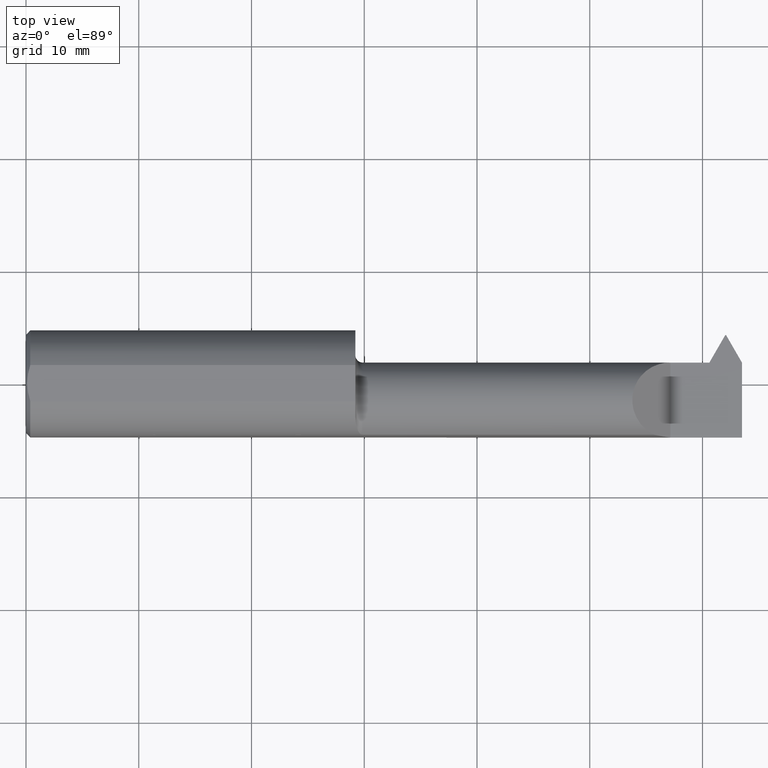
[diagram: clean part render]
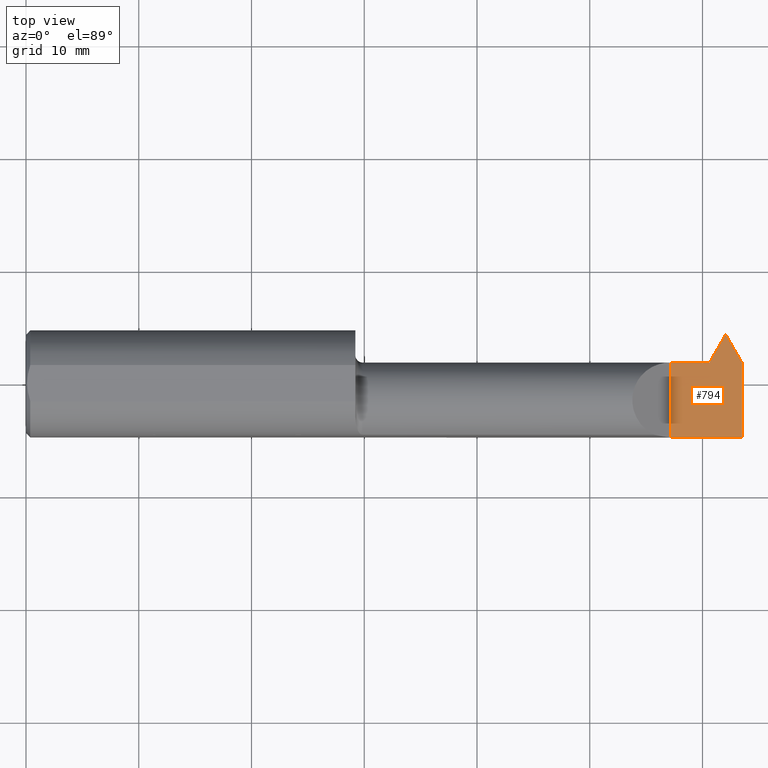
[diagram: same view with one face highlighted and labeled with its STEP entity id]
A machine part, top view. The second image highlights one B-rep face of the part: STEP entity #794.
In plain terms, the highlighted planar face has unit normal (-0, 0, -1).
Its self-contained STEP definition (entity closure, byte-faithful):
#2 = VERTEX_POINT ( 'NONE', #451 ) ;
#21 = CARTESIAN_POINT ( 'NONE',  ( 2.250000000000000000, 0.07464999999999979985, 4.959819536546775670E-16 ) ) ;
#30 = ORIENTED_EDGE ( 'NONE', *, *, #359, .F. ) ;
#42 = ORIENTED_EDGE ( 'NONE', *, *, #306, .F. ) ;
#69 = ORIENTED_EDGE ( 'NONE', *, *, #223, .F. ) ;
#75 = DIRECTION ( 'NONE',  ( 1.000000000000000000, -8.318523153256623909E-17, 0.000000000000000000 ) ) ;
#85 = PLANE ( 'NONE',  #305 ) ;
#106 = ORIENTED_EDGE ( 'NONE', *, *, #558, .F. ) ;
#115 = LINE ( 'NONE', #400, #801 ) ;
#119 = LINE ( 'NONE', #311, #704 ) ;
#121 = VERTEX_POINT ( 'NONE', #336 ) ;
#130 = VERTEX_POINT ( 'NONE', #519 ) ;
#140 = CARTESIAN_POINT ( 'NONE',  ( 2.500000000000000000, -0.1873499999999999888, 0.000000000000000000 ) ) ;
#158 = DIRECTION ( 'NONE',  ( -1.000000000000000000, -0.000000000000000000, -0.000000000000000000 ) ) ;
#173 = LINE ( 'NONE', #528, #257 ) ;
#204 = VECTOR ( 'NONE', #658, 39.37007874015748143 ) ;
#217 = ORIENTED_EDGE ( 'NONE', *, *, #789, .F. ) ;
#223 = EDGE_CURVE ( 'NONE', #240, #641, #572, .T. ) ;
#225 = LINE ( 'NONE', #542, #481 ) ;
#233 = DIRECTION ( 'NONE',  ( 1.000000000000000000, -1.519028875531158940E-14, -0.000000000000000000 ) ) ;
#235 = CARTESIAN_POINT ( 'NONE',  ( 2.500000000000000000, 0.000000000000000000, 0.000000000000000000 ) ) ;
#240 = VERTEX_POINT ( 'NONE', #683 ) ;
#257 = VECTOR ( 'NONE', #233, 39.37007874015748143 ) ;
#303 = DIRECTION ( 'NONE',  ( -0.000000000000000000, 1.000000000000000000, -0.000000000000000000 ) ) ;
#305 = AXIS2_PLACEMENT_3D ( 'NONE', #644, #709, #393 ) ;
#306 = EDGE_CURVE ( 'NONE', #641, #763, #225, .T. ) ;
#311 = CARTESIAN_POINT ( 'NONE',  ( 1.150000000000000133, 0.1706500000000000516, 4.959819536546775670E-16 ) ) ;
#324 = CARTESIAN_POINT ( 'NONE',  ( 1.150000000000000133, 0.07464999999999989699, 4.959819536546775670E-16 ) ) ;
#336 = CARTESIAN_POINT ( 'NONE',  ( 2.376520281605562168, 0.07464999999999995250, 0.000000000000000000 ) ) ;
#346 = EDGE_CURVE ( 'NONE', #680, #130, #119, .T. ) ;
#359 = EDGE_CURVE ( 'NONE', #763, #623, #115, .T. ) ;
#362 = VECTOR ( 'NONE', #769, 39.37007874015748854 ) ;
#390 = ORIENTED_EDGE ( 'NONE', *, *, #687, .F. ) ;
#393 = DIRECTION ( 'NONE',  ( -1.000000000000000000, 0.000000000000000000, 3.673940397442056910E-16 ) ) ;
#400 = CARTESIAN_POINT ( 'NONE',  ( 2.250000000000000000, -0.2500000000000000555, 9.184850993605143507E-17 ) ) ;
#412 = EDGE_CURVE ( 'NONE', #130, #240, #484, .T. ) ;
#448 = ORIENTED_EDGE ( 'NONE', *, *, #346, .F. ) ;
#451 = CARTESIAN_POINT ( 'NONE',  ( 2.386074374157796552, 0.07464999999999979985, 0.000000000000000000 ) ) ;
#454 = VECTOR ( 'NONE', #75, 39.37007874015748143 ) ;
#456 = FACE_OUTER_BOUND ( 'NONE', #722, .T. ) ;
#460 = DIRECTION ( 'NONE',  ( 1.000000000000000000, -8.318523153256623909E-17, 0.000000000000000000 ) ) ;
#478 = ORIENTED_EDGE ( 'NONE', *, *, #412, .F. ) ;
#481 = VECTOR ( 'NONE', #158, 39.37007874015748143 ) ;
#484 = LINE ( 'NONE', #768, #735 ) ;
#504 = LINE ( 'NONE', #776, #362 ) ;
#519 = CARTESIAN_POINT ( 'NONE',  ( 2.444500000000000117, 0.1706500000000000239, 0.000000000000000000 ) ) ;
#528 = CARTESIAN_POINT ( 'NONE',  ( 2.386074374157796552, 0.07464999999999979985, 0.000000000000000000 ) ) ;
#542 = CARTESIAN_POINT ( 'NONE',  ( 3.374459510989174253E-31, -0.1873499999999999610, 9.184850993605140056E-16 ) ) ;
#558 = EDGE_CURVE ( 'NONE', #623, #121, #650, .T. ) ;
#572 = LINE ( 'NONE', #235, #204 ) ;
#590 = CARTESIAN_POINT ( 'NONE',  ( 2.250000000000000000, -0.1873499999999999888, 9.184850993605143507E-17 ) ) ;
#623 = VERTEX_POINT ( 'NONE', #21 ) ;
#641 = VERTEX_POINT ( 'NONE', #140 ) ;
#643 = DIRECTION ( 'NONE',  ( 0.4999999999999948375, -0.8660254037844417052, 0.000000000000000000 ) ) ;
#644 = CARTESIAN_POINT ( 'NONE',  ( 2.500000000000000000, -0.2500000000000000555, 0.000000000000000000 ) ) ;
#650 = LINE ( 'NONE', #324, #454 ) ;
#658 = DIRECTION ( 'NONE',  ( 0.000000000000000000, -1.000000000000000000, 0.000000000000000000 ) ) ;
#680 = VERTEX_POINT ( 'NONE', #783 ) ;
#683 = CARTESIAN_POINT ( 'NONE',  ( 2.500000000000000000, 0.07452118017992603871, 0.000000000000000000 ) ) ;
#687 = EDGE_CURVE ( 'NONE', #121, #2, #173, .T. ) ;
#704 = VECTOR ( 'NONE', #460, 39.37007874015748143 ) ;
#709 = DIRECTION ( 'NONE',  ( -3.673940397442056910E-16, 0.000000000000000000, -1.000000000000000000 ) ) ;
#722 = EDGE_LOOP ( 'NONE', ( #448, #217, #390, #106, #30, #42, #69, #478 ) ) ;
#735 = VECTOR ( 'NONE', #643, 39.37007874015748143 ) ;
#763 = VERTEX_POINT ( 'NONE', #590 ) ;
#768 = CARTESIAN_POINT ( 'NONE',  ( 2.444500000000000117, 0.1706500000000000239, 0.000000000000000000 ) ) ;
#769 = DIRECTION ( 'NONE',  ( 0.4999999999999955036, 0.8660254037844411501, -0.000000000000000000 ) ) ;
#776 = CARTESIAN_POINT ( 'NONE',  ( 2.441500000000000004, 0.1706500000000000239, 0.000000000000000000 ) ) ;
#783 = CARTESIAN_POINT ( 'NONE',  ( 2.441500000000000004, 0.1706500000000000239, 0.000000000000000000 ) ) ;
#789 = EDGE_CURVE ( 'NONE', #2, #680, #504, .T. ) ;
#794 = ADVANCED_FACE ( 'NONE', ( #456 ), #85, .F. ) ;
#801 = VECTOR ( 'NONE', #303, 39.37007874015748143 ) ;